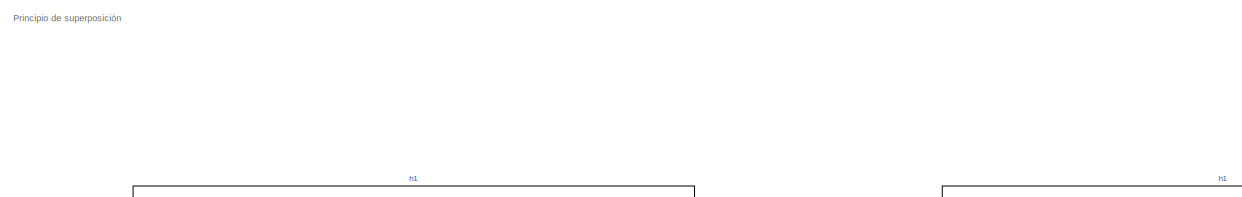
[diagram: root canvas - part 1/5, top center region]
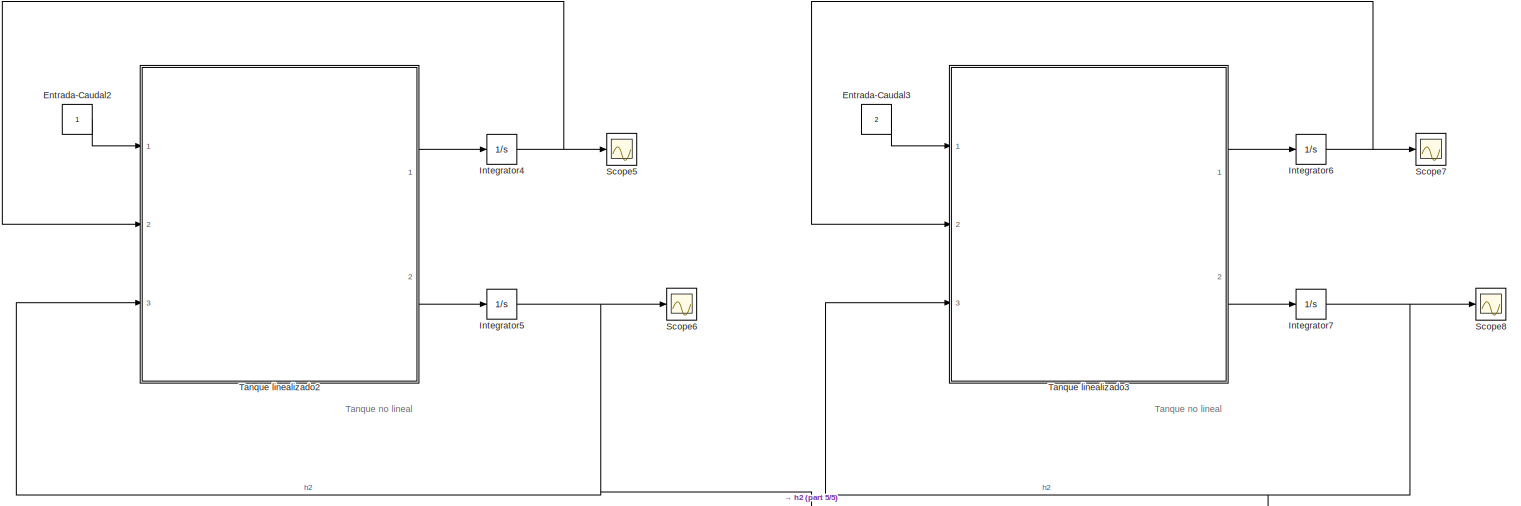
[diagram: root canvas - part 2/5, top right region]
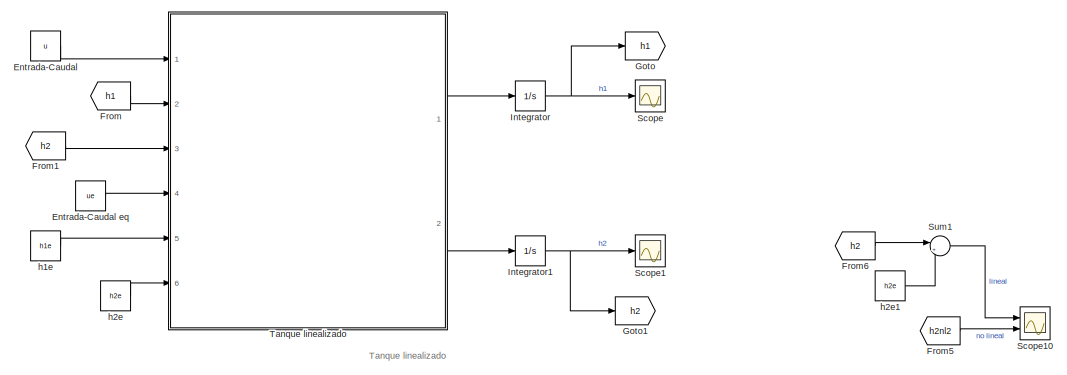
[diagram: root canvas - part 3/5, top left region]
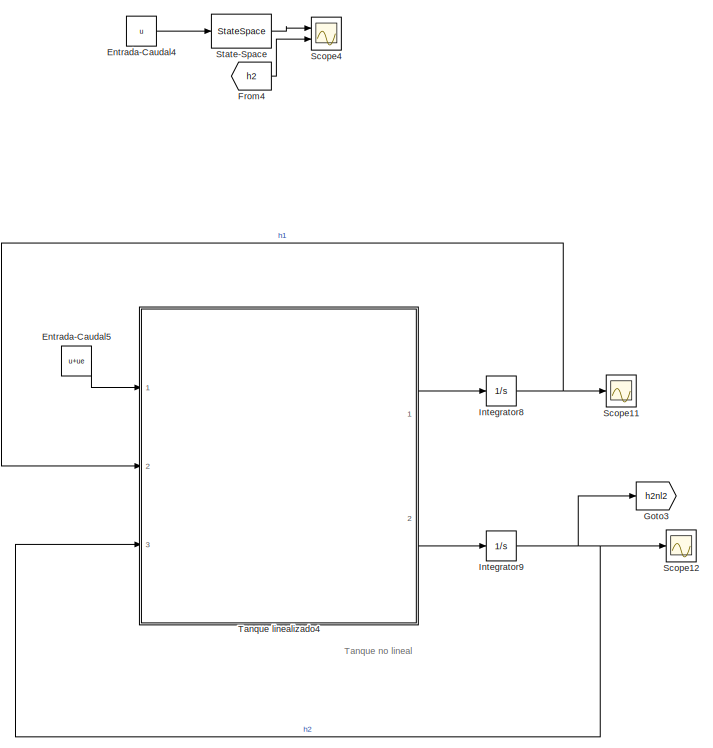
[diagram: root canvas - part 4/5, bottom left region]
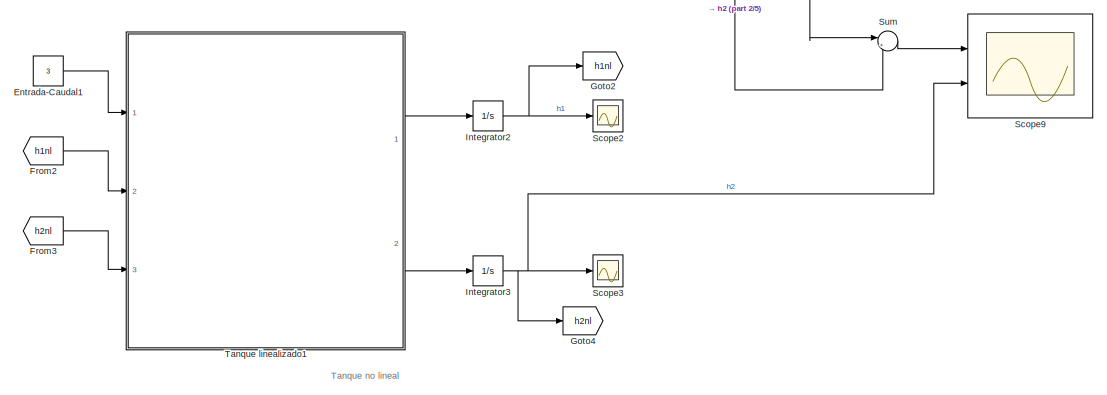
[diagram: root canvas - part 5/5, bottom right region]
MODEL slx_bcfd48a6b7bd
KIND model
CONFIG AbsTol = auto
CONFIG EnableMultiTasking = off
CONFIG FixedStep = auto
CONFIG InitFcn = tanques_linealizado
CONFIG MaxStep = auto
CONFIG MinStep = auto
CONFIG RelTol = 1e-3
CONFIG SampleTimeConstraint = Unconstrained
CONFIG Solver = VariableStepAuto
CONFIG SolverName = VariableStepAuto
CONFIG StartTime = 0.0
CONFIG StopTime = 16
BLOCK [Constant] Entrada-Caudal
  Value = u
BLOCK [Constant] Entrada-Caudal eq
  Value = ue
BLOCK [Constant] Entrada-Caudal1
  Value = 3
BLOCK [Constant] Entrada-Caudal2
BLOCK [Constant] Entrada-Caudal3
  Value = 2
BLOCK [Constant] Entrada-Caudal4
  Value = u
BLOCK [Constant] Entrada-Caudal5
  Value = u+ue
BLOCK [From] From
  GotoTag = h1
BLOCK [From] From1
  GotoTag = h2
BLOCK [From] From2
  GotoTag = h1nl
BLOCK [From] From3
  GotoTag = h2nl
BLOCK [From] From4
  GotoTag = h2
BLOCK [From] From5
  GotoTag = h2nl2
BLOCK [From] From6
  GotoTag = h2
BLOCK [Goto] Goto
  GotoTag = h1
BLOCK [Goto] Goto1
  GotoTag = h2
BLOCK [Goto] Goto2
  GotoTag = h1nl
BLOCK [Goto] Goto3
  GotoTag = h2nl2
BLOCK [Goto] Goto4
  GotoTag = h2nl
BLOCK [Integrator] Integrator
  InitialCondition = 1.1*h1e-h1e
  Ports = [1, 1]
BLOCK [Integrator] Integrator1
  InitialCondition = 1.1*h2e-h2e
  Ports = [1, 1]
BLOCK [Integrator] Integrator2
  InitialCondition = 0.001
  Ports = [1, 1]
BLOCK [Integrator] Integrator3
  Ports = [1, 1]
BLOCK [Integrator] Integrator4
  InitialCondition = 0.001
  LowerSaturationLimit = 0
  Ports = [1, 1]
  UpperSaturationLimit = 2
BLOCK [Integrator] Integrator5
  Ports = [1, 1]
BLOCK [Integrator] Integrator6
  InitialCondition = 0.001
  LowerSaturationLimit = 0
  Ports = [1, 1]
  UpperSaturationLimit = 2
BLOCK [Integrator] Integrator7
  Ports = [1, 1]
BLOCK [Integrator] Integrator8
  InitialCondition = 1.1*h1e
  LowerSaturationLimit = 0
  Ports = [1, 1]
  UpperSaturationLimit = 2
BLOCK [Integrator] Integrator9
  InitialCondition = 1.1*h2e
  Ports = [1, 1]
BLOCK [Scope] Scope
  Floating = off
  NumInputPorts = 1
  Ports = [1]
  ScopeSpecificationString = Simulink.scopes.TimeScopeBlockCfg('CurrentConfiguration', extmgr.ConfigurationSet(extmgr.Configuration('Core','General UI',true),extmgr.Configuration('Core','Source UI',true),extmgr.Configuration('Sources','WiredSimulink',true),extmgr.Configuration('Visuals','Time Domain',true,'SerializedDisplays',{struct('MinYLimReal','-0.10565','MaxYLimReal','1.01174','YLabelReal','','MinYLimMag','0.00000','MaxY...<+1399ch>
BLOCK [Scope] Scope1
  Floating = off
  NumInputPorts = 1
  Ports = [1]
  ScopeSpecificationString = Simulink.scopes.TimeScopeBlockCfg('CurrentConfiguration', extmgr.ConfigurationSet(extmgr.Configuration('Core','General UI',true),extmgr.Configuration('Core','Source UI',true),extmgr.Configuration('Sources','WiredSimulink',true,'DataLoggingVariableName','ScopeData1'),extmgr.Configuration('Visuals','Time Domain',true,'SerializedDisplays',{struct('MinYLimReal','0.01004','MaxYLimReal','0.11','YLabelRe...<+1401ch>
BLOCK [Scope] Scope10
  Floating = off
  NumInputPorts = 2
  Ports = [2]
  ScopeSpecificationString = Simulink.scopes.TimeScopeBlockCfg('CurrentConfiguration', extmgr.ConfigurationSet(extmgr.Configuration('Core','General UI',true),extmgr.Configuration('Core','Source UI',true),extmgr.Configuration('Sources','WiredSimulink',true,'DataLoggingVariableName','ScopeData1'),extmgr.Configuration('Visuals','Time Domain',true,'SerializedDisplays',{struct('MinYLimReal','0.99008','MaxYLimReal','1.11221','YLabe...<+1474ch>
BLOCK [Scope] Scope11
  Floating = off
  NumInputPorts = 1
  Ports = [1]
  ScopeSpecificationString = Simulink.scopes.TimeScopeBlockCfg('CurrentConfiguration', extmgr.ConfigurationSet(extmgr.Configuration('Core','General UI',true),extmgr.Configuration('Core','Source UI',true),extmgr.Configuration('Sources','WiredSimulink',true,'DataLoggingVariableName','ScopeData1'),extmgr.Configuration('Visuals','Time Domain',true,'SerializedDisplays',{struct('MinYLimReal','1.01012','MaxYLimReal','1.10999','YLabe...<+1392ch>
BLOCK [Scope] Scope12
  Floating = off
  NumInputPorts = 1
  Ports = [1]
  ScopeSpecificationString = Simulink.scopes.TimeScopeBlockCfg('CurrentConfiguration', extmgr.ConfigurationSet(extmgr.Configuration('Core','General UI',true),extmgr.Configuration('Core','Source UI',true),extmgr.Configuration('Sources','WiredSimulink',true,'DataLoggingVariableName','ScopeData2'),extmgr.Configuration('Visuals','Time Domain',true,'SerializedDisplays',{struct('MinYLimReal','1.01018','MaxYLimReal','1.10998','YLabe...<+1415ch>
BLOCK [Scope] Scope2
  Floating = off
  NumInputPorts = 1
  Ports = [1]
  ScopeSpecificationString = Simulink.scopes.TimeScopeBlockCfg('CurrentConfiguration', extmgr.ConfigurationSet(extmgr.Configuration('Core','General UI',true),extmgr.Configuration('Core','Source UI',true),extmgr.Configuration('Sources','WiredSimulink',true,'DataLoggingVariableName','ScopeData2'),extmgr.Configuration('Visuals','Time Domain',true,'SerializedDisplays',{struct('MinYLimReal','-0.30172','MaxYLimReal','3.71545','YLab...<+1361ch>
BLOCK [Scope] Scope3
  Floating = off
  NumInputPorts = 1
  Ports = [1]
  ScopeSpecificationString = Simulink.scopes.TimeScopeBlockCfg('CurrentConfiguration', extmgr.ConfigurationSet(extmgr.Configuration('Core','General UI',true),extmgr.Configuration('Core','Source UI',true),extmgr.Configuration('Sources','WiredSimulink',true,'DataLoggingVariableName','ScopeData3'),extmgr.Configuration('Visuals','Time Domain',true,'SerializedDisplays',{struct('MinYLimReal','-0.34748','MaxYLimReal','3.12733','YLab...<+1415ch>
BLOCK [Scope] Scope4
  Floating = off
  NumInputPorts = 2
  Ports = [2]
  ScopeSpecificationString = Simulink.scopes.TimeScopeBlockCfg('CurrentConfiguration', extmgr.ConfigurationSet(extmgr.Configuration('Core','General UI',true),extmgr.Configuration('Core','Source UI',true),extmgr.Configuration('Sources','WiredSimulink',true,'DataLoggingVariableName','ScopeData1'),extmgr.Configuration('Visuals','Time Domain',true,'SerializedDisplays',{struct('MinYLimReal','-0.00992','MaxYLimReal','0.11221','YLab...<+1495ch>
BLOCK [Scope] Scope5
  Floating = off
  NumInputPorts = 1
  Ports = [1]
  ScopeSpecificationString = Simulink.scopes.TimeScopeBlockCfg('CurrentConfiguration', extmgr.ConfigurationSet(extmgr.Configuration('Core','General UI',true),extmgr.Configuration('Core','Source UI',true),extmgr.Configuration('Sources','WiredSimulink',true,'DataLoggingVariableName','ScopeData5'),extmgr.Configuration('Visuals','Time Domain',true,'SerializedDisplays',{struct('MinYLimReal','-0.12387','MaxYLimReal','1.12487','YLab...<+1394ch>
BLOCK [Scope] Scope6
  Floating = off
  NumInputPorts = 1
  Ports = [1]
  ScopeSpecificationString = Simulink.scopes.TimeScopeBlockCfg('CurrentConfiguration', extmgr.ConfigurationSet(extmgr.Configuration('Core','General UI',true),extmgr.Configuration('Core','Source UI',true),extmgr.Configuration('Sources','WiredSimulink',true,'DataLoggingVariableName','ScopeData6'),extmgr.Configuration('Visuals','Time Domain',true,'SerializedDisplays',{struct('MinYLimReal','-0.12488','MaxYLimReal','1.12396','YLab...<+1417ch>
BLOCK [Scope] Scope7
  Floating = off
  NumInputPorts = 1
  Ports = [1]
  ScopeSpecificationString = Simulink.scopes.TimeScopeBlockCfg('CurrentConfiguration', extmgr.ConfigurationSet(extmgr.Configuration('Core','General UI',true),extmgr.Configuration('Core','Source UI',true),extmgr.Configuration('Sources','WiredSimulink',true,'DataLoggingVariableName','ScopeData7'),extmgr.Configuration('Visuals','Time Domain',true,'SerializedDisplays',{struct('MinYLimReal','-0.37358','MaxYLimReal','3.37225','YLab...<+1361ch>
BLOCK [Scope] Scope8
  Floating = off
  NumInputPorts = 1
  Ports = [1]
  ScopeSpecificationString = Simulink.scopes.TimeScopeBlockCfg('CurrentConfiguration', extmgr.ConfigurationSet(extmgr.Configuration('Core','General UI',true),extmgr.Configuration('Core','Source UI',true),extmgr.Configuration('Sources','WiredSimulink',true,'DataLoggingVariableName','ScopeData8'),extmgr.Configuration('Visuals','Time Domain',true,'SerializedDisplays',{struct('MinYLimReal','-0.12488','MaxYLimReal','1.12392','YLab...<+1415ch>
BLOCK [Scope] Scope9
  Floating = off
  NumInputPorts = 2
  Ports = [2]
  ScopeSpecificationString = Simulink.scopes.TimeScopeBlockCfg('CurrentConfiguration', extmgr.ConfigurationSet(extmgr.Configuration('Core','General UI',true),extmgr.Configuration('Core','Source UI',true),extmgr.Configuration('Sources','WiredSimulink',true,'DataLoggingVariableName','ScopeData9'),extmgr.Configuration('Visuals','Time Domain',true,'SerializedDisplays',{struct('MinYLimReal','-0.46234','MaxYLimReal','4.16108','YLab...<+1396ch>
BLOCK [StateSpace] State-Space
  A = A
  B = B
  C = C
  D = D
  InitialCondition = [1.1*h1e-h1e;1.1*h2e-h2e]
  Ports = [1, 1]
BLOCK [Sum] Sum
  IconShape = round
  InputSameDT = off
  Inputs = |++
  OutDataTypeStr = Inherit: Inherit via internal rule
  Ports = [2, 1]
  SaturateOnIntegerOverflow = off
BLOCK [Sum] Sum1
  IconShape = round
  InputSameDT = off
  Inputs = |++
  OutDataTypeStr = Inherit: Inherit via internal rule
  Ports = [2, 1]
  SaturateOnIntegerOverflow = off
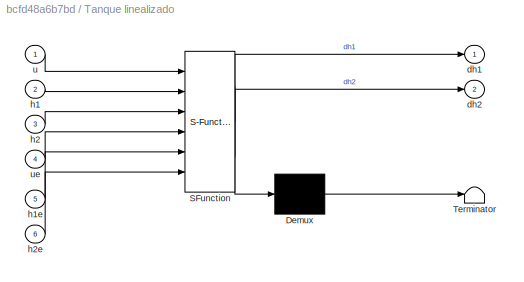
BLOCK [SubSystem] Tanque linealizado
  ErrorFcn = Stateflow.Translate.translate
  PermitHierarchicalResolution = ExplicitOnly
  Ports = [6, 2]
  RequestExecContextInheritance = off
  SFBlockType = MATLAB Function
  TreatAsAtomicUnit = on
BLOCK [Demux] Tanque linealizado/ Demux 
  Outputs = 1
  Ports = [1, 1]
BLOCK [S-Function] Tanque linealizado/ SFunction 
  EnableBusSupport = on
  FunctionName = sf_sfun
  PortCounts = [6 3]
  Ports = [6, 3]
  SFcnIsStateOwnerBlock = off
  SFunctionDeploymentMode = off
  Tag = Stateflow S-Function sistemanl_tanques 2
BLOCK [Terminator] Tanque linealizado/ Terminator 
BLOCK [Outport] Tanque linealizado/dh1
  IconDisplay = Port number
BLOCK [Outport] Tanque linealizado/dh2
  IconDisplay = Port number
  Port = 2
BLOCK [Inport] Tanque linealizado/h1
  IconDisplay = Port number
  Port = 2
BLOCK [Inport] Tanque linealizado/h1e
  IconDisplay = Port number
  Port = 5
BLOCK [Inport] Tanque linealizado/h2
  IconDisplay = Port number
  Port = 3
BLOCK [Inport] Tanque linealizado/h2e
  IconDisplay = Port number
  Port = 6
BLOCK [Inport] Tanque linealizado/u
  IconDisplay = Port number
BLOCK [Inport] Tanque linealizado/ue
  IconDisplay = Port number
  Port = 4
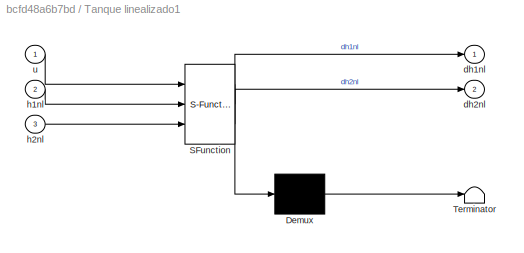
BLOCK [SubSystem] Tanque linealizado1
  ErrorFcn = Stateflow.Translate.translate
  PermitHierarchicalResolution = ExplicitOnly
  Ports = [3, 2]
  RequestExecContextInheritance = off
  SFBlockType = MATLAB Function
  TreatAsAtomicUnit = on
BLOCK [Demux] Tanque linealizado1/ Demux 
  Outputs = 1
  Ports = [1, 1]
BLOCK [S-Function] Tanque linealizado1/ SFunction 
  EnableBusSupport = on
  FunctionName = sf_sfun
  PortCounts = [3 3]
  Ports = [3, 3]
  SFcnIsStateOwnerBlock = off
  SFunctionDeploymentMode = off
  Tag = Stateflow S-Function sistemanl_tanques 1
BLOCK [Terminator] Tanque linealizado1/ Terminator 
BLOCK [Outport] Tanque linealizado1/dh1nl
  IconDisplay = Port number
BLOCK [Outport] Tanque linealizado1/dh2nl
  IconDisplay = Port number
  Port = 2
BLOCK [Inport] Tanque linealizado1/h1nl
  IconDisplay = Port number
  Port = 2
BLOCK [Inport] Tanque linealizado1/h2nl
  IconDisplay = Port number
  Port = 3
BLOCK [Inport] Tanque linealizado1/u
  IconDisplay = Port number
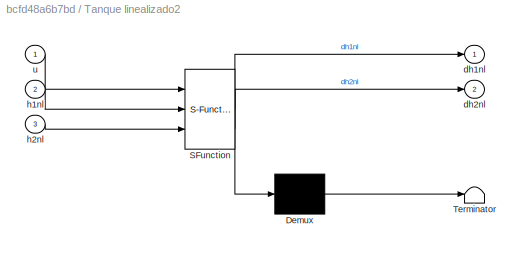
BLOCK [SubSystem] Tanque linealizado2
  ErrorFcn = Stateflow.Translate.translate
  PermitHierarchicalResolution = ExplicitOnly
  Ports = [3, 2]
  RequestExecContextInheritance = off
  SFBlockType = MATLAB Function
  TreatAsAtomicUnit = on
BLOCK [Demux] Tanque linealizado2/ Demux 
  Outputs = 1
  Ports = [1, 1]
BLOCK [S-Function] Tanque linealizado2/ SFunction 
  EnableBusSupport = on
  FunctionName = sf_sfun
  PortCounts = [3 3]
  Ports = [3, 3]
  SFcnIsStateOwnerBlock = off
  SFunctionDeploymentMode = off
  Tag = Stateflow S-Function sistemanl_tanques 3
BLOCK [Terminator] Tanque linealizado2/ Terminator 
BLOCK [Outport] Tanque linealizado2/dh1nl
  IconDisplay = Port number
BLOCK [Outport] Tanque linealizado2/dh2nl
  IconDisplay = Port number
  Port = 2
BLOCK [Inport] Tanque linealizado2/h1nl
  IconDisplay = Port number
  Port = 2
BLOCK [Inport] Tanque linealizado2/h2nl
  IconDisplay = Port number
  Port = 3
BLOCK [Inport] Tanque linealizado2/u
  IconDisplay = Port number
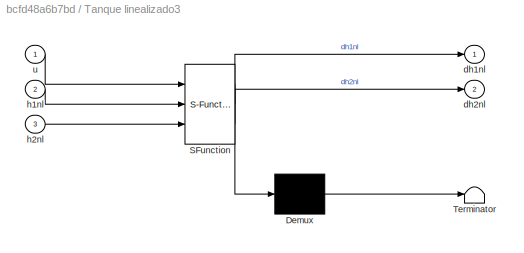
BLOCK [SubSystem] Tanque linealizado3
  ErrorFcn = Stateflow.Translate.translate
  PermitHierarchicalResolution = ExplicitOnly
  Ports = [3, 2]
  RequestExecContextInheritance = off
  SFBlockType = MATLAB Function
  TreatAsAtomicUnit = on
BLOCK [Demux] Tanque linealizado3/ Demux 
  Outputs = 1
  Ports = [1, 1]
BLOCK [S-Function] Tanque linealizado3/ SFunction 
  EnableBusSupport = on
  FunctionName = sf_sfun
  PortCounts = [3 3]
  Ports = [3, 3]
  SFcnIsStateOwnerBlock = off
  SFunctionDeploymentMode = off
  Tag = Stateflow S-Function sistemanl_tanques 4
BLOCK [Terminator] Tanque linealizado3/ Terminator 
BLOCK [Outport] Tanque linealizado3/dh1nl
  IconDisplay = Port number
BLOCK [Outport] Tanque linealizado3/dh2nl
  IconDisplay = Port number
  Port = 2
BLOCK [Inport] Tanque linealizado3/h1nl
  IconDisplay = Port number
  Port = 2
BLOCK [Inport] Tanque linealizado3/h2nl
  IconDisplay = Port number
  Port = 3
BLOCK [Inport] Tanque linealizado3/u
  IconDisplay = Port number
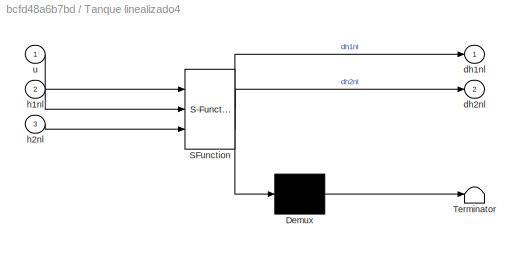
BLOCK [SubSystem] Tanque linealizado4
  ErrorFcn = Stateflow.Translate.translate
  PermitHierarchicalResolution = ExplicitOnly
  Ports = [3, 2]
  RequestExecContextInheritance = off
  SFBlockType = MATLAB Function
  TreatAsAtomicUnit = on
BLOCK [Demux] Tanque linealizado4/ Demux 
  Outputs = 1
  Ports = [1, 1]
BLOCK [S-Function] Tanque linealizado4/ SFunction 
  EnableBusSupport = on
  FunctionName = sf_sfun
  PortCounts = [3 3]
  Ports = [3, 3]
  SFcnIsStateOwnerBlock = off
  SFunctionDeploymentMode = off
  Tag = Stateflow S-Function sistemanl_tanques 5
BLOCK [Terminator] Tanque linealizado4/ Terminator 
BLOCK [Outport] Tanque linealizado4/dh1nl
  IconDisplay = Port number
BLOCK [Outport] Tanque linealizado4/dh2nl
  IconDisplay = Port number
  Port = 2
BLOCK [Inport] Tanque linealizado4/h1nl
  IconDisplay = Port number
  Port = 2
BLOCK [Inport] Tanque linealizado4/h2nl
  IconDisplay = Port number
  Port = 3
BLOCK [Inport] Tanque linealizado4/u
  IconDisplay = Port number
BLOCK [Constant] h1e
  Value = h1e
BLOCK [Constant] h2e
  Value = h2e
BLOCK [Constant] h2e1
  Value = h2e
ANNOTATION (root): Tanque linealizado
ANNOTATION (root): Tanque no lineal
ANNOTATION (root): Principio de superposición
LINE Entrada-Caudal eq:1 -> Tanque linealizado:4
LINE Entrada-Caudal1:1 -> Tanque linealizado1:1
LINE Entrada-Caudal2:1 -> Tanque linealizado2:1
LINE Entrada-Caudal3:1 -> Tanque linealizado3:1
LINE Entrada-Caudal4:1 -> State-Space:1
LINE Entrada-Caudal5:1 -> Tanque linealizado4:1
LINE Entrada-Caudal:1 -> Tanque linealizado:1
LINE From1:1 -> Tanque linealizado:3
LINE From2:1 -> Tanque linealizado1:2
LINE From3:1 -> Tanque linealizado1:3
LINE From4:1 -> Scope4:2
LINE From5:1 -> Scope10:2
LINE From6:1 -> Sum1:1
LINE From:1 -> Tanque linealizado:2
NET Integrator1:1 -> Goto1:1, Scope1:1
NET Integrator2:1 -> Goto2:1, Scope2:1
NET Integrator3:1 -> Goto4:1, Scope3:1, Scope9:2
NET Integrator4:1 -> Scope5:1, Tanque linealizado2:2
NET Integrator5:1 -> Scope6:1, Sum:2, Tanque linealizado2:3
NET Integrator6:1 -> Scope7:1, Tanque linealizado3:2
NET Integrator7:1 -> Scope8:1, Sum:1, Tanque linealizado3:3
NET Integrator8:1 -> Scope11:1, Tanque linealizado4:2
NET Integrator9:1 -> Goto3:1, Scope12:1, Tanque linealizado4:3
NET Integrator:1 -> Goto:1, Scope:1
LINE State-Space:1 -> Scope4:1
LINE Sum1:1 -> Scope10:1
LINE Sum:1 -> Scope9:1
LINE Tanque linealizado1:1 -> Integrator2:1
LINE Tanque linealizado1:2 -> Integrator3:1
LINE Tanque linealizado2:1 -> Integrator4:1
LINE Tanque linealizado2:2 -> Integrator5:1
LINE Tanque linealizado3:1 -> Integrator6:1
LINE Tanque linealizado3:2 -> Integrator7:1
LINE Tanque linealizado4:1 -> Integrator8:1
LINE Tanque linealizado4:2 -> Integrator9:1
LINE Tanque linealizado:1 -> Integrator:1
LINE Tanque linealizado:2 -> Integrator1:1
LINE h1e:1 -> Tanque linealizado:5
LINE h2e1:1 -> Sum1:2
LINE h2e:1 -> Tanque linealizado:6
note: NET lines group one-source signal fan-out (src -> all destinations, sorted); 1:1 wires keep LINE
CHART Tanque linealizado1 states=1 transitions=1
  STATE_LABEL 'eML_blk_kernel()'
  STATE_LABEL 'SCRIPT:\nfunction [dh1nl,dh2nl] = fcn(u,h1nl,h2nl)\n\n\ndh1nl=(u-sqrt(h1nl))/(h1nl)^2;\ndh2nl=sqrt(h1nl)-sqrt(h2nl);\n'
CHART Tanque linealizado states=1 transitions=1
  STATE_LABEL 'eML_blk_kernel()'
  STATE_LABEL 'SCRIPT:\nfunction [dh1,dh2] = fcn(u,h1,h2,ue,h1e,h2e)\n\n\n%Matriz A jacobiana\nA=[(-0.5*h1e^(-0.5)*h1e^2-2*h1e*(ue-sqrt(h1e)))/h1e^4               0;\n    0.5*h1e^(-0.5)                                          -0.5*h2e^(-0.5)];\n%Matriz B jacobiana\nB=[1/h1e^2 ; 0];\nh=[h1;h2];\n\ndh=A*h+B*u;\n\ndh1=dh(1,1);\ndh2=dh(2,1);\n\n% dh1=h1*(-0.5*h1e^(-0.5)*h1e^2-2*h1e*(ue-sqrt(h1e)))/h1e^4\n% dh2= h1*0.5*h1e^(-0.5) -h...<+17ch>'
CHART Tanque linealizado2 states=1 transitions=1
  STATE_LABEL 'eML_blk_kernel()'
  STATE_LABEL 'SCRIPT:\nfunction [dh1nl,dh2nl] = fcn(u,h1nl,h2nl)\n\n\n\ndh1nl=(u-sqrt(h1nl))/(h1nl)^2;\ndh2nl=sqrt(h1nl)-sqrt(h2nl);\n\n\n'
CHART Tanque linealizado3 states=1 transitions=1
  STATE_LABEL 'eML_blk_kernel()'
  STATE_LABEL 'SCRIPT:\nfunction [dh1nl,dh2nl] = fcn(u,h1nl,h2nl)\n\n\ndh1nl=(u-sqrt(h1nl))/(h1nl)^2;\ndh2nl=sqrt(h1nl)-sqrt(h2nl);\n'
CHART Tanque linealizado4 states=1 transitions=1
  STATE_LABEL 'eML_blk_kernel()'
  STATE_LABEL 'SCRIPT:\nfunction [dh1nl,dh2nl] = fcn(u,h1nl,h2nl)\n\n\n\ndh1nl=(u-sqrt(h1nl))/(h1nl)^2;\ndh2nl=sqrt(h1nl)-sqrt(h2nl);\n\n\n'
